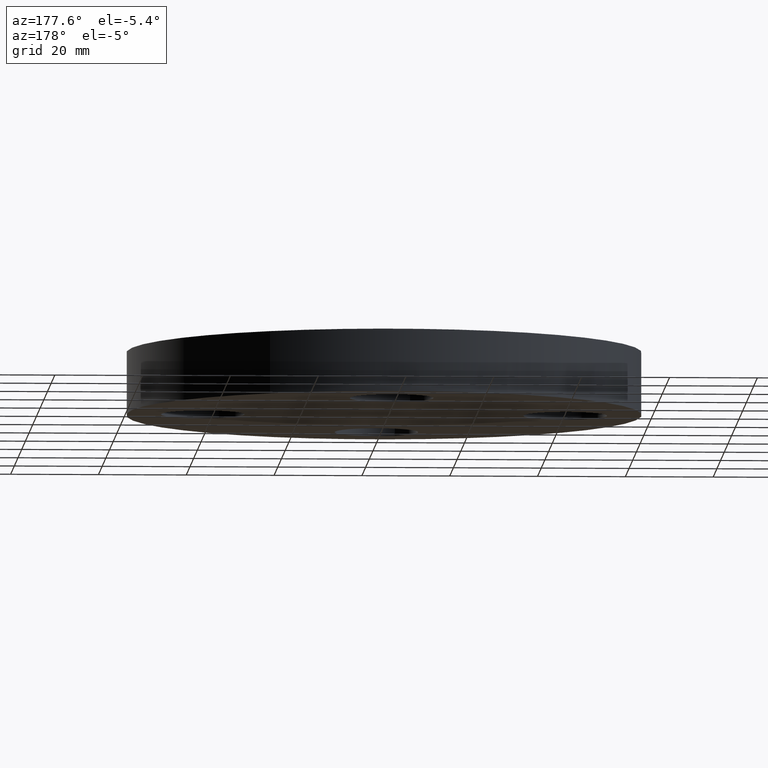
[diagram: clean part render]
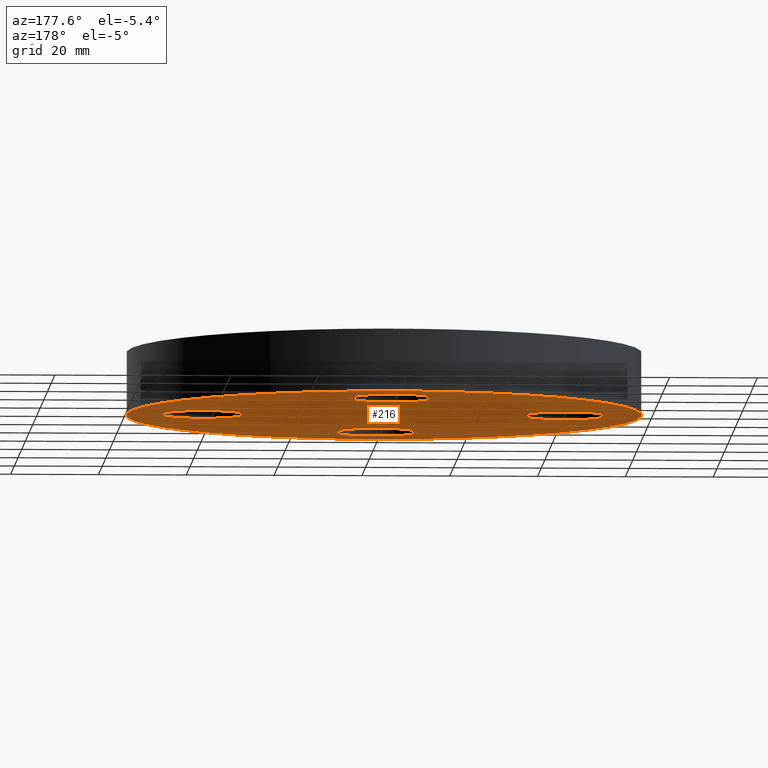
[diagram: same view with one face highlighted and labeled with its STEP entity id]
A machine part, auxiliary view. The second image highlights one B-rep face of the part: STEP entity #216.
In plain terms, the highlighted planar face has unit normal (0, 0, -1).
Its self-contained STEP definition (entity closure, byte-faithful):
#51=AXIS2_PLACEMENT_3D('Circle Axis2P3D',#49,#50,$) ;
#77=AXIS2_PLACEMENT_3D('Circle Axis2P3D',#75,#76,$) ;
#99=AXIS2_PLACEMENT_3D('Circle Axis2P3D',#97,#98,$) ;
#134=AXIS2_PLACEMENT_3D('Circle Axis2P3D',#132,#133,$) ;
#152=AXIS2_PLACEMENT_3D('Plane Axis2P3D',#149,#150,#151) ;
#164=AXIS2_PLACEMENT_3D('Circle Axis2P3D',#162,#163,$) ;
#173=AXIS2_PLACEMENT_3D('Circle Axis2P3D',#171,#172,$) ;
#182=AXIS2_PLACEMENT_3D('Circle Axis2P3D',#180,#181,$) ;
#191=AXIS2_PLACEMENT_3D('Circle Axis2P3D',#189,#190,$) ;
#200=AXIS2_PLACEMENT_3D('Circle Axis2P3D',#198,#199,$) ;
#209=AXIS2_PLACEMENT_3D('Circle Axis2P3D',#207,#208,$) ;
#44=CARTESIAN_POINT('Vertex',(1.2959065393,0.179784576977,0.)) ;
#49=CARTESIAN_POINT('Axis2P3D Location',(1.62500000001,0.,0.)) ;
#53=CARTESIAN_POINT('Vertex',(1.95409346072,-0.179784576977,0.)) ;
#75=CARTESIAN_POINT('Axis2P3D Location',(1.62500000001,0.,0.)) ;
#97=CARTESIAN_POINT('Axis2P3D Location',(0.,0.,1.74838271595E-016)) ;
#101=CARTESIAN_POINT('Vertex',(1.10747299418,2.02721571797,1.39870617276E-016)) ;
#103=CARTESIAN_POINT('Vertex',(-1.10747299418,-2.02721571797,1.39870617276E-016)) ;
#132=CARTESIAN_POINT('Axis2P3D Location',(0.,0.,1.74838271595E-016)) ;
#149=CARTESIAN_POINT('Axis2P3D Location',(0.,0.,0.)) ;
#162=CARTESIAN_POINT('Axis2P3D Location',(-1.39870617276E-016,-1.62500000001,0.)) ;
#166=CARTESIAN_POINT('Vertex',(0.179784576977,-1.2959065393,0.)) ;
#168=CARTESIAN_POINT('Vertex',(-0.179784576977,-1.95409346072,0.)) ;
#171=CARTESIAN_POINT('Axis2P3D Location',(-2.79741234551E-016,-1.62500000001,0.)) ;
#180=CARTESIAN_POINT('Axis2P3D Location',(-1.62500000001,-1.74838271595E-016,0.)) ;
#184=CARTESIAN_POINT('Vertex',(-1.2959065393,-0.179784576977,0.)) ;
#186=CARTESIAN_POINT('Vertex',(-1.95409346072,0.179784576977,0.)) ;
#189=CARTESIAN_POINT('Axis2P3D Location',(-1.62500000001,-2.09805925913E-016,0.)) ;
#198=CARTESIAN_POINT('Axis2P3D Location',(-3.1470888887E-016,1.62500000001,0.)) ;
#202=CARTESIAN_POINT('Vertex',(-0.179784576977,1.2959065393,0.)) ;
#204=CARTESIAN_POINT('Vertex',(0.179784576977,1.95409346072,0.)) ;
#207=CARTESIAN_POINT('Axis2P3D Location',(-2.44773580232E-016,1.62500000001,0.)) ;
#50=DIRECTION('Axis2P3D Direction',(0.,-0.,-0.0393700787402)) ;
#76=DIRECTION('Axis2P3D Direction',(0.,-0.,-0.0393700787402)) ;
#98=DIRECTION('Axis2P3D Direction',(0.,0.,-0.0393700787402)) ;
#133=DIRECTION('Axis2P3D Direction',(0.,0.,-0.0393700787402)) ;
#150=DIRECTION('Axis2P3D Direction',(0.,0.,-0.0393700787402)) ;
#151=DIRECTION('Axis2P3D XDirection',(0.0393700787402,0.,0.)) ;
#163=DIRECTION('Axis2P3D Direction',(0.,0.,-0.0393700787402)) ;
#172=DIRECTION('Axis2P3D Direction',(0.,0.,-0.0393700787402)) ;
#181=DIRECTION('Axis2P3D Direction',(0.,0.,-0.0393700787402)) ;
#190=DIRECTION('Axis2P3D Direction',(0.,0.,-0.0393700787402)) ;
#199=DIRECTION('Axis2P3D Direction',(0.,0.,-0.0393700787402)) ;
#208=DIRECTION('Axis2P3D Direction',(0.,0.,-0.0393700787402)) ;
#155=ORIENTED_EDGE('',*,*,#105,.T.) ;
#156=ORIENTED_EDGE('',*,*,#136,.T.) ;
#159=ORIENTED_EDGE('',*,*,#79,.F.) ;
#160=ORIENTED_EDGE('',*,*,#55,.F.) ;
#177=ORIENTED_EDGE('',*,*,#170,.F.) ;
#178=ORIENTED_EDGE('',*,*,#175,.F.) ;
#195=ORIENTED_EDGE('',*,*,#188,.F.) ;
#196=ORIENTED_EDGE('',*,*,#193,.F.) ;
#213=ORIENTED_EDGE('',*,*,#206,.F.) ;
#214=ORIENTED_EDGE('',*,*,#211,.F.) ;
#161=FACE_BOUND('',#158,.T.) ;
#179=FACE_BOUND('',#176,.T.) ;
#197=FACE_BOUND('',#194,.T.) ;
#215=FACE_BOUND('',#212,.T.) ;
#216=ADVANCED_FACE('PartBody',(#157,#161,#179,#197,#215),#153,.T.) ;
#52=CIRCLE('generated circle',#51,0.375000000001) ;
#78=CIRCLE('generated circle',#77,0.375000000001) ;
#100=CIRCLE('generated circle',#99,2.31000000001) ;
#135=CIRCLE('generated circle',#134,2.31000000001) ;
#165=CIRCLE('generated circle',#164,0.375000000001) ;
#174=CIRCLE('generated circle',#173,0.375000000001) ;
#183=CIRCLE('generated circle',#182,0.375000000002) ;
#192=CIRCLE('generated circle',#191,0.375000000002) ;
#201=CIRCLE('generated circle',#200,0.375000000001) ;
#210=CIRCLE('generated circle',#209,0.375000000001) ;
#55=EDGE_CURVE('',#45,#54,#52,.T.) ;
#79=EDGE_CURVE('',#54,#45,#78,.T.) ;
#105=EDGE_CURVE('',#102,#104,#100,.T.) ;
#136=EDGE_CURVE('',#104,#102,#135,.T.) ;
#170=EDGE_CURVE('',#167,#169,#165,.T.) ;
#175=EDGE_CURVE('',#169,#167,#174,.T.) ;
#188=EDGE_CURVE('',#185,#187,#183,.T.) ;
#193=EDGE_CURVE('',#187,#185,#192,.T.) ;
#206=EDGE_CURVE('',#203,#205,#201,.T.) ;
#211=EDGE_CURVE('',#205,#203,#210,.T.) ;
#154=EDGE_LOOP('',(#155,#156)) ;
#158=EDGE_LOOP('',(#159,#160)) ;
#176=EDGE_LOOP('',(#177,#178)) ;
#194=EDGE_LOOP('',(#195,#196)) ;
#212=EDGE_LOOP('',(#213,#214)) ;
#157=FACE_OUTER_BOUND('',#154,.T.) ;
#153=PLANE('',#152) ;
#45=VERTEX_POINT('',#44) ;
#54=VERTEX_POINT('',#53) ;
#102=VERTEX_POINT('',#101) ;
#104=VERTEX_POINT('',#103) ;
#167=VERTEX_POINT('',#166) ;
#169=VERTEX_POINT('',#168) ;
#185=VERTEX_POINT('',#184) ;
#187=VERTEX_POINT('',#186) ;
#203=VERTEX_POINT('',#202) ;
#205=VERTEX_POINT('',#204) ;